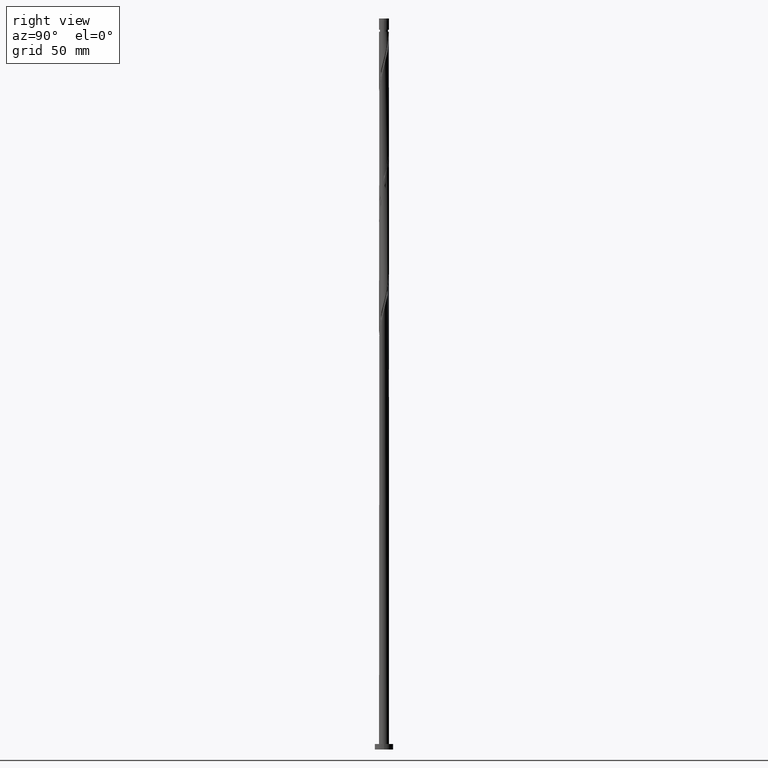
[diagram: clean part render]
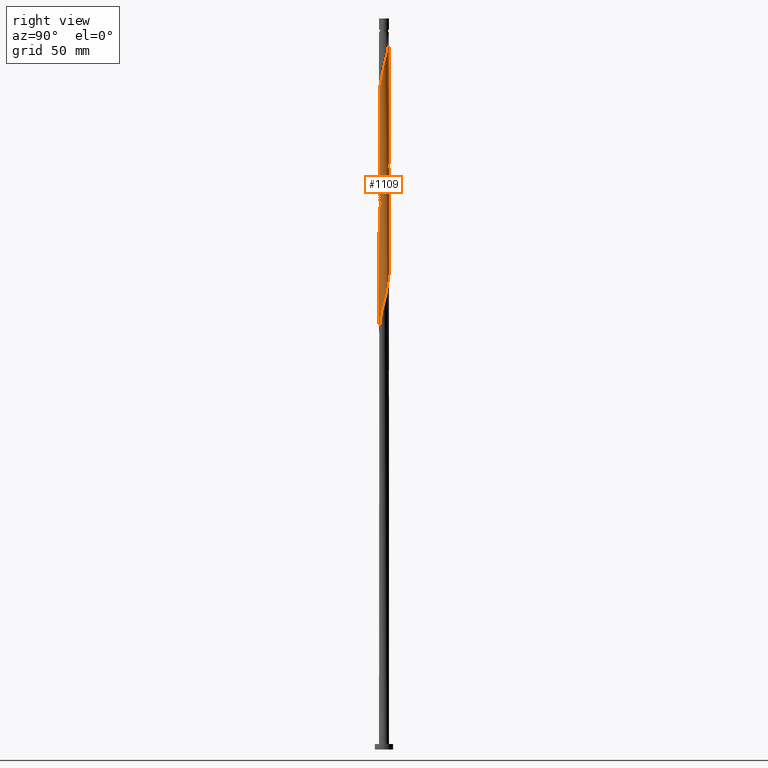
[diagram: same view with one face highlighted and labeled with its STEP entity id]
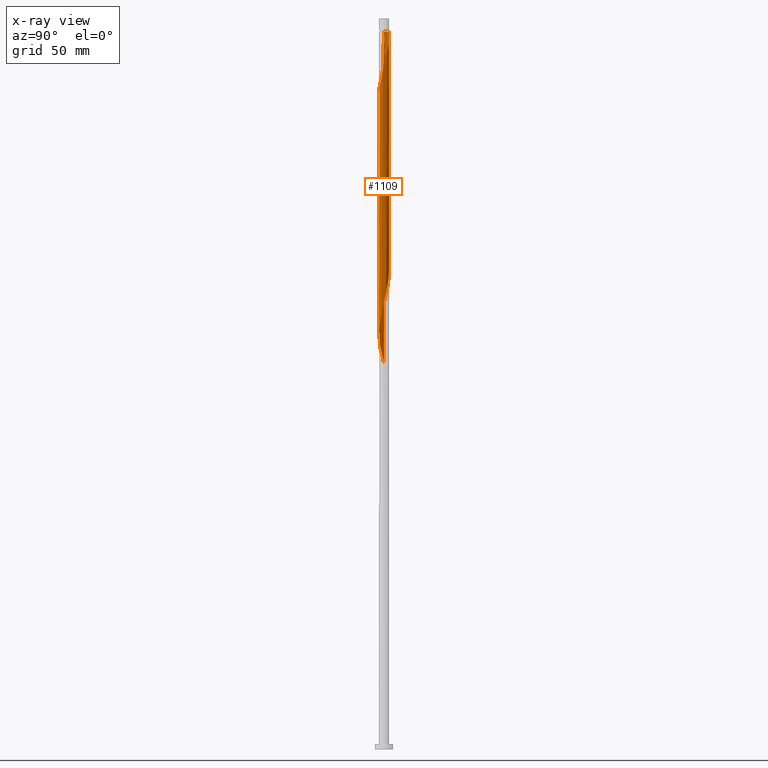
[diagram: x-ray of the same camera — body ghosted, the highlighted face saturated]
A machine part, right view. The second image highlights one B-rep face of the part: STEP entity #1109.
The next image is the same camera in x-ray: the body ghosted, the highlighted face saturated — about 0% of this face is hidden behind the body in this view.
In plain terms, the highlighted cylindrical surface (bore or boss wall) has radius 2.75 mm, axis along (-0, -0, -1).
Its self-contained STEP definition (entity closure, byte-faithful):
#40 = CARTESIAN_POINT ( 'NONE',  ( -2.536223244062801196, 1.101641429673628103, 340.5563878787840508 ) ) ;
#52 = CARTESIAN_POINT ( 'NONE',  ( 0.000000000000000000, 0.000000000000000000, 392.7786101010062794 ) ) ;
#54 = CARTESIAN_POINT ( 'NONE',  ( 2.536223244062806081, 1.101641429673626549, 378.3341656565618791 ) ) ;
#61 = VERTEX_POINT ( 'NONE', #287 ) ;
#67 = VECTOR ( 'NONE', #1145, 1000.000000000000000 ) ;
#77 = CARTESIAN_POINT ( 'NONE',  ( 1.831459344255979227, 2.071665719568494879, 320.5563878787841077 ) ) ;
#81 = CARTESIAN_POINT ( 'NONE',  ( 2.737438987291752834, -0.2625410269940723906, 310.5563878787841077 ) ) ;
#99 = CARTESIAN_POINT ( 'NONE',  ( 0.8783854691676968862, -2.621923177908314972, 298.3341656565619360 ) ) ;
#108 = CARTESIAN_POINT ( 'NONE',  ( 2.060316917994737818, -1.821426418339391340, 237.2230545454507649 ) ) ;
#109 = VERTEX_POINT ( 'NONE', #1718 ) ;
#114 = LINE ( 'NONE', #685, #457 ) ;
#116 = CARTESIAN_POINT ( 'NONE',  ( 2.536223244062801196, -1.101641429673628769, 240.5563878787841361 ) ) ;
#129 = CARTESIAN_POINT ( 'NONE',  ( 2.709844813423676335, -0.5502574583398192054, 242.7786101010063362 ) ) ;
#135 = CARTESIAN_POINT ( 'NONE',  ( -0.3140621580726320472, -2.747254473863784074, 356.1119434343395938 ) ) ;
#140 = CARTESIAN_POINT ( 'NONE',  ( -1.636598203750744496, 2.209987855052564232, 268.3341656565618223 ) ) ;
#144 = CARTESIAN_POINT ( 'NONE',  ( 2.699376291652122450, -0.5995079810680130628, 371.6674989898952504 ) ) ;
#162 = CARTESIAN_POINT ( 'NONE',  ( 0.8783854691677005500, 2.621923177908317193, 387.2230545454508501 ) ) ;
#172 =( BOUNDED_CURVE ( )  B_SPLINE_CURVE ( 2, ( #1046, #568, #272, #1616, #901, #1034, #715, #743, #1469, #1605, #1775, #863, #1289, #1431, #1448, #135, #871, #1311, #1868, #284, #1151, #1586, #724, #1298, #734, #261, #1876, #1024, #1736, #144, #1883, #590, #1091, #633, #499, #54, #658, #1080, #1061, #1206, #1667, #1237, #1379, #162, #762, #1054, #1814, #348, #795 ),
 .UNSPECIFIED., .F., .T. ) 
 B_SPLINE_CURVE_WITH_KNOTS ( ( 3, 2, 2, 2, 2, 2, 2, 2, 2, 2, 2, 2, 2, 2, 2, 2, 2, 2, 2, 2, 2, 2, 2, 2, 3 ),
 ( 0.5545286012773116280, 0.5583333333333333481, 0.5666666666666666519, 0.5749999999999999556, 0.5833333333333332593, 0.5916666666666666741, 0.5999999999999999778, 0.6083333333333333925, 0.6166666666666666963, 0.6250000000000000000, 0.6333333333333333037, 0.6416666666666666075, 0.6500000000000001332, 0.6583333333333334370, 0.6666666666666667407, 0.6750000000000001554, 0.6833333333333333481, 0.6916666666666667629, 0.7000000000000000666, 0.7083333333333333703, 0.7166666666666667851, 0.7250000000000000888, 0.7333333333333335036, 0.7416666666666668073, 0.7500000000000001110 ),
 .UNSPECIFIED. ) 
 CURVE ( )  GEOMETRIC_REPRESENTATION_ITEM ( )  RATIONAL_B_SPLINE_CURVE ( ( 0.9066196499552549026, 0.9068171577856677379, 0.9090909090909665702, 0.9041108139712148439, 0.9090909090909665702, 0.9041108139712148439, 0.9090909090909665702, 0.9041108139712148439, 0.9090909090909665702, 0.9041108139712148439, 0.9090909090909665702, 0.9041108139712148439, 0.9090909090909665702, 0.9041108139712148439, 0.9090909090909665702, 0.9041108139712148439, 0.9090909090909665702, 0.9041108139712148439, 0.9090909090909665702, 0.9041108139712148439, 0.9090909090909665702, 0.9041108139712148439, 0.9090909090909665702, 0.9041108139712148439, 0.9090909090909665702, 0.9041108139712148439, 0.9090909090909665702, 0.9041108139712148439, 0.9090909090909665702, 0.9041108139712148439, 0.9090909090909665702, 0.9041108139712148439, 0.9090909090909665702, 0.9041108139712148439, 0.9090909090909665702, 0.9041108139712148439, 0.9090909090909665702, 0.9041108139712148439, 0.9090909090909665702, 0.9041108139712148439, 0.9090909090909665702, 0.9041108139712148439, 0.9090909090909665702, 0.9041108139712148439, 0.9090909090909665702, 0.9041108139712148439, 0.9090909090909665702, 0.9041108139712147329, 0.9090909090909666812 ) ) 
 REPRESENTATION_ITEM ( '' )  );
#177 = CARTESIAN_POINT ( 'NONE',  ( -1.831459344255979005, -2.071665719568495767, 220.5563878787841645 ) ) ;
#188 = CARTESIAN_POINT ( 'NONE',  ( -2.709844813423676335, 0.5502574583398186503, 342.7786101010063931 ) ) ;
#204 = CARTESIAN_POINT ( 'NONE',  ( 0.02503749085249112882, -2.749886020192801706, 228.3341656565618791 ) ) ;
#230 = CARTESIAN_POINT ( 'NONE',  ( -0.02503749085249187822, 2.749886020192801706, 328.3341656565619928 ) ) ;
#240 = CARTESIAN_POINT ( 'NONE',  ( -0.8783854691676976634, 2.621923177908314528, 265.0008323232285647 ) ) ;
#249 = CARTESIAN_POINT ( 'NONE',  ( -2.393989896424900454, 1.353259906971122639, 272.7786101010063362 ) ) ;
#253 = CARTESIAN_POINT ( 'NONE',  ( 2.750000000000000444, 0.1566777779776840629, 312.1763113205789750 ) ) ;
#257 = CARTESIAN_POINT ( 'NONE',  ( -0.02503749085249187822, 2.749886020192801706, 261.6674989898951935 ) ) ;
#259 = ORIENTED_EDGE ( 'NONE', *, *, #363, .F. ) ;
#261 = CARTESIAN_POINT ( 'NONE',  ( 2.222161085990171259, -1.645613044190155527, 367.2230545454507364 ) ) ;
#265 = CARTESIAN_POINT ( 'NONE',  ( 1.596086692558399633, 2.239421190807567630, 255.0008323232285647 ) ) ;
#272 = CARTESIAN_POINT ( 'NONE',  ( -2.737438987291756831, -0.2625410269940704477, 341.6674989898952504 ) ) ;
#276 = CARTESIAN_POINT ( 'NONE',  ( -2.060316917994738262, 1.821426418339390230, 270.5563878787841077 ) ) ;
#284 = CARTESIAN_POINT ( 'NONE',  ( 0.8304990044496428636, -2.637482433478177235, 360.5563878787842214 ) ) ;
#287 = CARTESIAN_POINT ( 'NONE',  ( -2.750000000000003553, 9.865954177638731195E-16, 340.6531668574847913 ) ) ;
#324 = CARTESIAN_POINT ( 'NONE',  ( -2.607560008403383200, -0.8735735816606078341, 215.0008323232285932 ) ) ;
#348 = CARTESIAN_POINT ( 'NONE',  ( -0.2639871763676486238, 2.752517566521829995, 391.6674989898952504 ) ) ;
#354 = VERTEX_POINT ( 'NONE', #438 ) ;
#363 = EDGE_CURVE ( 'NONE', #61, #1646, #172, .T. ) ;
#376 = VERTEX_POINT ( 'NONE', #1215 ) ;
#381 = CARTESIAN_POINT ( 'NONE',  ( 2.251756548786999268, -1.604878384268620062, 305.0008323232285079 ) ) ;
#408 = CARTESIAN_POINT ( 'NONE',  ( -2.536223244062801196, 1.101641429673628103, 273.8897212121175357 ) ) ;
#419 = CARTESIAN_POINT ( 'NONE',  ( -1.404319120299012180, 2.382001257694966068, 267.2230545454507933 ) ) ;
#427 = ORIENTED_EDGE ( 'NONE', *, *, #1794, .F. ) ;
#431 = CARTESIAN_POINT ( 'NONE',  ( -0.5962238136201641892, 2.684588825886046859, 263.8897212121174221 ) ) ;
#438 = CARTESIAN_POINT ( 'NONE',  ( -2.749999999999964473, 0.000000000000000000, 392.7786101010062794 ) ) ;
#440 = CARTESIAN_POINT ( 'NONE',  ( -2.732204726405974338, -0.3123416927098429663, 279.4452767676729650 ) ) ;
#442 = DIRECTION ( 'NONE',  ( -0.000000000000000000, -0.000000000000000000, -1.000000000000000000 ) ) ;
#457 = VECTOR ( 'NONE', #864, 1000.000000000000000 ) ;
#477 = DIRECTION ( 'NONE',  ( -0.000000000000000000, -0.000000000000000000, -1.000000000000000000 ) ) ;
#480 = CARTESIAN_POINT ( 'NONE',  ( 0.02503749085249112882, -2.749886020192801706, 295.0008323232285647 ) ) ;
#499 = CARTESIAN_POINT ( 'NONE',  ( 2.623034028743242985, 0.8259494440067226551, 377.2230545454509070 ) ) ;
#508 = ORIENTED_EDGE ( 'NONE', *, *, #515, .T. ) ;
#513 = CARTESIAN_POINT ( 'NONE',  ( -1.095606522655231396, -2.522329547762407032, 223.8897212121174221 ) ) ;
#515 = EDGE_CURVE ( 'NONE', #61, #1103, #1657, .T. ) ;
#519 = CARTESIAN_POINT ( 'NONE',  ( -1.360714040860818486, -2.407176662046642601, 222.7786101010063362 ) ) ;
#522 = ORIENTED_EDGE ( 'NONE', *, *, #1706, .T. ) ;
#539 = CARTESIAN_POINT ( 'NONE',  ( -0.3140621580726310480, 2.747254473863780522, 329.4452767676729650 ) ) ;
#541 = DIRECTION ( 'NONE',  ( -1.000000000000000000, 0.000000000000000000, 0.000000000000000000 ) ) ;
#555 = CARTESIAN_POINT ( 'NONE',  ( 0.5472430904086456049, 2.694999999999999396, 326.1119434343395938 ) ) ;
#557 = CARTESIAN_POINT ( 'NONE',  ( 2.222161085990171703, 1.645613044190150642, 251.6674989898953356 ) ) ;
#564 = CARTESIAN_POINT ( 'NONE',  ( 2.607560008403384533, 0.8735735816606066129, 248.3341656565618507 ) ) ;
#568 = CARTESIAN_POINT ( 'NONE',  ( -2.750000000000003109, -0.1315709980385686151, 341.1617153830489997 ) ) ;
#573 = CARTESIAN_POINT ( 'NONE',  ( 2.026810215123074688, 1.858639381879324093, 252.7786101010062794 ) ) ;
#586 = CARTESIAN_POINT ( 'NONE',  ( 0.5472430904086456049, 2.694999999999999396, 259.4452767676730218 ) ) ;
#590 = CARTESIAN_POINT ( 'NONE',  ( 2.765033161159833774, -0.02517540435167804971, 373.8897212121174789 ) ) ;
#595 = CARTESIAN_POINT ( 'NONE',  ( 0.2639871763676471250, 2.752517566521825110, 260.5563878787841077 ) ) ;
#598 = CARTESIAN_POINT ( 'NONE',  ( -2.750000000000000000, -1.614428865431802238E-15, 211.5707200111945383 ) ) ;
#633 = CARTESIAN_POINT ( 'NONE',  ( 2.709844813423679444, 0.5502574583398184283, 376.1119434343397074 ) ) ;
#645 = CARTESIAN_POINT ( 'NONE',  ( -2.393989896424900454, 1.353259906971122639, 339.4452767676730218 ) ) ;
#658 = CARTESIAN_POINT ( 'NONE',  ( 2.393989896424904007, 1.353259906971123749, 379.4452767676730787 ) ) ;
#662 = CARTESIAN_POINT ( 'NONE',  ( -2.515743725154647059, -1.147639182253207046, 216.1119434343396790 ) ) ;
#685 = CARTESIAN_POINT ( 'NONE',  ( 2.750000000000000000, 3.367778697655221012E-16, 400.0000000000000000 ) ) ;
#693 = CARTESIAN_POINT ( 'NONE',  ( -2.251756548787000156, 1.604878384268618063, 338.3341656565620497 ) ) ;
#696 = CARTESIAN_POINT ( 'NONE',  ( 2.709844813423676335, -0.5502574583398192054, 309.4452767676730218 ) ) ;
#701 = CARTESIAN_POINT ( 'NONE',  ( 2.368952405572409159, 1.396626113221678400, 317.2230545454507933 ) ) ;
#705 = CARTESIAN_POINT ( 'NONE',  ( 0.5962238136201629679, -2.684588825886047303, 297.2230545454507933 ) ) ;
#708 = CARTESIAN_POINT ( 'NONE',  ( 2.750000000000000000, 4.335040471992802617E-16, 311.5707200111944530 ) ) ;
#711 = CARTESIAN_POINT ( 'NONE',  ( 1.636598203750743830, -2.209987855052565120, 235.0008323232285363 ) ) ;
#715 = CARTESIAN_POINT ( 'NONE',  ( -2.393989896424904007, -1.353259906971123971, 346.1119434343396506 ) ) ;
#716 = CARTESIAN_POINT ( 'NONE',  ( 2.732204726405974338, 0.3123416927098426887, 312.7786101010063362 ) ) ;
#719 = CARTESIAN_POINT ( 'NONE',  ( 1.868877287202476811, -2.037974452410163728, 302.7786101010064499 ) ) ;
#724 = CARTESIAN_POINT ( 'NONE',  ( 1.596086692558398745, -2.239421190807573403, 363.8897212121174789 ) ) ;
#729 = CARTESIAN_POINT ( 'NONE',  ( 2.765033161159829778, 0.02517540435167425067, 245.0008323232285079 ) ) ;
#734 = CARTESIAN_POINT ( 'NONE',  ( 2.026810215123076464, -1.858639381879326979, 366.1119434343395938 ) ) ;
#739 = CARTESIAN_POINT ( 'NONE',  ( -0.2639871763676483463, -2.752517566521825110, 293.8897212121174221 ) ) ;
#743 = CARTESIAN_POINT ( 'NONE',  ( -2.251756548787004153, -1.604878384268619618, 347.2230545454507933 ) ) ;
#762 = CARTESIAN_POINT ( 'NONE',  ( 0.5962238136201674088, 2.684588825886050856, 388.3341656565619360 ) ) ;
#777 = CARTESIAN_POINT ( 'NONE',  ( -2.699376291652119786, -0.5995079810680096211, 213.8897212121175073 ) ) ;
#788 = CARTESIAN_POINT ( 'NONE',  ( -2.623034028743237212, 0.8259494440067235432, 341.6674989898951935 ) ) ;
#795 = CARTESIAN_POINT ( 'NONE',  ( -0.5472430904087440817, 2.695000000000762785, 392.7786101010064499 ) ) ;
#801 = ORIENTED_EDGE ( 'NONE', *, *, #1663, .F. ) ;
#810 = CARTESIAN_POINT ( 'NONE',  ( -2.026810215123074244, -1.858639381879324093, 219.4452767676729650 ) ) ;
#828 = CARTESIAN_POINT ( 'NONE',  ( 1.596086692558399633, 2.239421190807567630, 321.6674989898950798 ) ) ;
#837 = CARTESIAN_POINT ( 'NONE',  ( 2.026810215123074688, 1.858639381879324093, 319.4452767676730218 ) ) ;
#846 = CARTESIAN_POINT ( 'NONE',  ( 0.8304990044496451951, 2.637482433478172350, 258.3341656565619360 ) ) ;
#859 = CARTESIAN_POINT ( 'NONE',  ( 2.732204726405974338, 0.3123416927098426887, 246.1119434343396222 ) ) ;
#863 = CARTESIAN_POINT ( 'NONE',  ( -1.404319120299014845, -2.382001257694969620, 351.6674989898952504 ) ) ;
#864 = DIRECTION ( 'NONE',  ( -0.000000000000000000, -0.000000000000000000, -1.000000000000000000 ) ) ;
#867 = CARTESIAN_POINT ( 'NONE',  ( -1.831459344255979005, -2.071665719568495767, 287.2230545454508501 ) ) ;
#868 = FACE_OUTER_BOUND ( 'NONE', #1702, .T. ) ;
#871 = CARTESIAN_POINT ( 'NONE',  ( -0.02503749085249342560, -2.749886020192806146, 357.2230545454508501 ) ) ;
#875 = CARTESIAN_POINT ( 'NONE',  ( 1.831459344255979227, 2.071665719568494879, 253.8897212121174505 ) ) ;
#886 = CARTESIAN_POINT ( 'NONE',  ( -1.360714040860818486, -2.407176662046642601, 289.4452767676730218 ) ) ;
#889 = CYLINDRICAL_SURFACE ( 'NONE', #1849, 2.750000000000000000 ) ;
#901 = CARTESIAN_POINT ( 'NONE',  ( -2.623034028743242985, -0.8259494440067236543, 343.8897212121176494 ) ) ;
#926 = CARTESIAN_POINT ( 'NONE',  ( -0.8304990044496438628, -2.637482433478172794, 225.0008323232285363 ) ) ;
#937 = CARTESIAN_POINT ( 'NONE',  ( -2.749999999999999112, 1.793809850479779909E-16, 344.9040533445278243 ) ) ;
#950 = CARTESIAN_POINT ( 'NONE',  ( -2.750000000000000000, 0.000000000000000000, 400.0000000000000000 ) ) ;
#953 = CARTESIAN_POINT ( 'NONE',  ( 0.3140621580726306594, -2.747254473863780522, 229.4452767676730787 ) ) ;
#963 = CARTESIAN_POINT ( 'NONE',  ( -2.222161085990171259, -1.645613044190152419, 218.3341656565618507 ) ) ;
#972 = CARTESIAN_POINT ( 'NONE',  ( 0.2639871763676471250, 2.752517566521825110, 327.2230545454507933 ) ) ;
#975 = CARTESIAN_POINT ( 'NONE',  ( 2.060316917994737818, -1.821426418339391340, 303.8897212121173652 ) ) ;
#981 = CARTESIAN_POINT ( 'NONE',  ( -1.141352294733354977, 2.501962217801640076, 332.7786101010063362 ) ) ;
#991 = ORIENTED_EDGE ( 'NONE', *, *, #1382, .F. ) ;
#996 = CARTESIAN_POINT ( 'NONE',  ( -0.8783854691676976634, 2.621923177908314528, 331.6674989898952504 ) ) ;
#1006 = CARTESIAN_POINT ( 'NONE',  ( 2.699376291652120674, 0.5995079810680088439, 247.2230545454507933 ) ) ;
#1013 = CARTESIAN_POINT ( 'NONE',  ( 1.636598203750743830, -2.209987855052565120, 301.6674989898951935 ) ) ;
#1020 = CARTESIAN_POINT ( 'NONE',  ( -1.596086692558398301, -2.239421190807568518, 288.3341656565619360 ) ) ;
#1024 = CARTESIAN_POINT ( 'NONE',  ( 2.515743725154651056, -1.147639182253209045, 369.4452767676729650 ) ) ;
#1029 = CARTESIAN_POINT ( 'NONE',  ( -2.737438987291752834, 0.2625410269940714469, 277.2230545454507364 ) ) ;
#1034 = CARTESIAN_POINT ( 'NONE',  ( -2.536223244062805193, -1.101641429673628103, 345.0008323232285647 ) ) ;
#1046 = CARTESIAN_POINT ( 'NONE',  ( -2.750000000000003553, 9.865954177638731195E-16, 340.6531668574847913 ) ) ;
#1054 = CARTESIAN_POINT ( 'NONE',  ( 0.3140621580726324913, 2.747254473863784074, 389.4452767676729650 ) ) ;
#1061 = CARTESIAN_POINT ( 'NONE',  ( 2.060316917994743147, 1.821426418339391118, 381.6674989898953072 ) ) ;
#1063 = CARTESIAN_POINT ( 'NONE',  ( -2.222161085990171259, -1.645613044190152419, 285.0008323232285647 ) ) ;
#1080 = CARTESIAN_POINT ( 'NONE',  ( 2.251756548787004597, 1.604878384268618730, 380.5563878787841645 ) ) ;
#1091 = CARTESIAN_POINT ( 'NONE',  ( 2.737438987291756831, 0.2625410269940689489, 375.0008323232286216 ) ) ;
#1094 = CARTESIAN_POINT ( 'NONE',  ( -2.368952405572409159, -1.396626113221678844, 217.2230545454507364 ) ) ;
#1103 = VERTEX_POINT ( 'NONE', #598 ) ;
#1105 = CARTESIAN_POINT ( 'NONE',  ( 2.393989896424900454, -1.353259906971123305, 306.1119434343395369 ) ) ;
#1109 = ADVANCED_FACE ( 'NONE', ( #868 ), #889, .T. ) ;
#1121 = CARTESIAN_POINT ( 'NONE',  ( 1.095606522655231840, 2.522329547762407032, 323.8897212121174789 ) ) ;
#1123 =( BOUNDED_CURVE ( )  B_SPLINE_CURVE ( 2, ( #1242, #1823, #81, #696, #1699, #1134, #1105, #381, #975, #719, #1013, #1760, #1420, #99, #705, #1589, #480, #739, #1748, #1579, #1443, #886, #1020, #867, #1739, #1063, #1276, #1291, #1886, #1866, #440, #1878, #1029, #1452, #1724, #408, #249, #1176, #276, #1148, #140, #419, #1435, #240, #431, #1315, #257, #595, #586, #846, #1597, #1861, #265, #875, #573, #557, #1167, #1142, #564, #1006, #859, #729, #1573, #129, #1427, #116, #1156, #1306, #108, #1285, #711, #1732, #1870, #1644, #1818, #953, #204, #1798, #1228, #926, #513, #519, #1810, #177, #810, #963, #1094, #662, #324, #777, #1496, #1805, #1670 ),
 .UNSPECIFIED., .F., .T. ) 
 B_SPLINE_CURVE_WITH_KNOTS ( ( 3, 2, 2, 2, 2, 2, 2, 2, 2, 2, 2, 2, 2, 2, 2, 2, 2, 2, 2, 2, 2, 2, 2, 2, 2, 2, 2, 2, 2, 2, 2, 2, 2, 2, 2, 2, 2, 2, 2, 2, 2, 2, 2, 2, 2, 2, 3 ),
 ( 0.5545286012773115170, 0.5583333333333333481, 0.5666666666666666519, 0.5749999999999999556, 0.5833333333333333703, 0.5916666666666666741, 0.5999999999999999778, 0.6083333333333332815, 0.6166666666666666963, 0.6250000000000000000, 0.6333333333333333037, 0.6416666666666667185, 0.6500000000000000222, 0.6583333333333333259, 0.6666666666666666297, 0.6750000000000000444, 0.6833333333333333481, 0.6916666666666666519, 0.6999999999999999556, 0.7083333333333333703, 0.7166666666666666741, 0.7249999999999999778, 0.7333333333333332815, 0.7416666666666666963, 0.7500000000000000000, 0.7583333333333333037, 0.7666666666666667185, 0.7750000000000000222, 0.7833333333333333259, 0.7916666666666666297, 0.8000000000000000444, 0.8083333333333333481, 0.8166666666666666519, 0.8249999999999999556, 0.8333333333333333703, 0.8416666666666666741, 0.8499999999999999778, 0.8583333333333332815, 0.8666666666666666963, 0.8750000000000000000, 0.8833333333333333037, 0.8916666666666667185, 0.9000000000000000222, 0.9083333333333333259, 0.9166666666666666297, 0.9250000000000000444, 0.9295286012773112949 ),
 .UNSPECIFIED. ) 
 CURVE ( )  GEOMETRIC_REPRESENTATION_ITEM ( )  RATIONAL_B_SPLINE_CURVE ( ( 0.9066196499552495736, 0.9068171577856622978, 0.9090909090909612411, 0.9041108139712092928, 0.9090909090909612411, 0.9041108139712092928, 0.9090909090909612411, 0.9041108139712092928, 0.9090909090909612411, 0.9041108139712092928, 0.9090909090909612411, 0.9041108139712092928, 0.9090909090909612411, 0.9041108139712092928, 0.9090909090909612411, 0.9041108139712092928, 0.9090909090909612411, 0.9041108139712092928, 0.9090909090909612411, 0.9041108139712092928, 0.9090909090909612411, 0.9041108139712092928, 0.9090909090909612411, 0.9041108139712092928, 0.9090909090909612411, 0.9041108139712092928, 0.9090909090909612411, 0.9041108139712092928, 0.9090909090909612411, 0.9041108139712092928, 0.9090909090909612411, 0.9041108139712092928, 0.9090909090909612411, 0.9041108139712092928, 0.9090909090909612411, 0.9041108139712092928, 0.9090909090909612411, 0.9041108139712092928, 0.9090909090909612411, 0.9041108139712092928, 0.9090909090909612411, 0.9041108139712092928, 0.9090909090909612411, 0.9041108139712092928, 0.9090909090909612411, 0.9041108139712092928, 0.9090909090909612411, 0.9041108139712092928, 0.9090909090909612411, 0.9041108139712092928, 0.9090909090909612411, 0.9041108139712092928, 0.9090909090909612411, 0.9041108139712092928, 0.9090909090909612411, 0.9041108139712092928, 0.9090909090909612411, 0.9041108139712092928, 0.9090909090909612411, 0.9041108139712092928, 0.9090909090909612411, 0.9041108139712092928, 0.9090909090909612411, 0.9041108139712092928, 0.9090909090909612411, 0.9041108139712092928, 0.9090909090909612411, 0.9041108139712092928, 0.9090909090909612411, 0.9041108139712092928, 0.9090909090909612411, 0.9041108139712092928, 0.9090909090909612411, 0.9041108139712092928, 0.9090909090909612411, 0.9041108139712092928, 0.9090909090909612411, 0.9041108139712092928, 0.9090909090909612411, 0.9041108139712092928, 0.9090909090909612411, 0.9041108139712092928, 0.9090909090909612411, 0.9041108139712092928, 0.9090909090909612411, 0.9041108139712092928, 0.9090909090909612411, 0.9041108139712092928, 0.9090909090909612411, 0.9041108139712092928, 0.9090909090909612411, 0.9063845652765083472, 0.9066196499552494625 ) ) 
 REPRESENTATION_ITEM ( '' )  );
#1134 = CARTESIAN_POINT ( 'NONE',  ( 2.536223244062801196, -1.101641429673628769, 307.2230545454509638 ) ) ;
#1140 = CARTESIAN_POINT ( 'NONE',  ( 2.699376291652120674, 0.5995079810680088439, 313.8897212121174789 ) ) ;
#1141 = ORIENTED_EDGE ( 'NONE', *, *, #1282, .T. ) ;
#1142 = CARTESIAN_POINT ( 'NONE',  ( 2.515743725154647947, 1.147639182253206824, 249.4452767676730502 ) ) ;
#1145 = DIRECTION ( 'NONE',  ( -0.000000000000000000, -0.000000000000000000, -1.000000000000000000 ) ) ;
#1148 = CARTESIAN_POINT ( 'NONE',  ( -1.868877287202477033, 2.037974452410163728, 269.4452767676730787 ) ) ;
#1151 = CARTESIAN_POINT ( 'NONE',  ( 1.095606522655230508, -2.522329547762411917, 361.6674989898953072 ) ) ;
#1156 = CARTESIAN_POINT ( 'NONE',  ( 2.393989896424900454, -1.353259906971123305, 239.4452767676729650 ) ) ;
#1167 = CARTESIAN_POINT ( 'NONE',  ( 2.368952405572409159, 1.396626113221678400, 250.5563878787840508 ) ) ;
#1175 = ORIENTED_EDGE ( 'NONE', *, *, #1706, .F. ) ;
#1176 = CARTESIAN_POINT ( 'NONE',  ( -2.251756548787000156, 1.604878384268618063, 271.6674989898952504 ) ) ;
#1179 = CARTESIAN_POINT ( 'NONE',  ( 0.000000000000000000, 0.000000000000000000, 400.0000000000000000 ) ) ;
#1206 = CARTESIAN_POINT ( 'NONE',  ( 1.868877287202480364, 2.037974452410165060, 382.7786101010062794 ) ) ;
#1215 = CARTESIAN_POINT ( 'NONE',  ( -2.749999999999999112, 1.793809850479779909E-16, 344.9040533445278243 ) ) ;
#1223 = AXIS2_PLACEMENT_3D ( 'NONE', #52, #1252, #541 ) ;
#1228 = CARTESIAN_POINT ( 'NONE',  ( -0.5472430904086452719, -2.694999999999999396, 226.1119434343396790 ) ) ;
#1237 = CARTESIAN_POINT ( 'NONE',  ( 1.404319120299016177, 2.382001257694969620, 385.0008323232286216 ) ) ;
#1242 = CARTESIAN_POINT ( 'NONE',  ( 2.750000000000000000, 4.335040471992802617E-16, 311.5707200111944530 ) ) ;
#1252 = DIRECTION ( 'NONE',  ( -0.000000000000000000, -0.000000000000000000, -1.000000000000000000 ) ) ;
#1263 = CARTESIAN_POINT ( 'NONE',  ( 0.8304990044496451951, 2.637482433478172350, 325.0008323232285647 ) ) ;
#1276 = CARTESIAN_POINT ( 'NONE',  ( -2.368952405572409159, -1.396626113221678844, 283.8897212121174221 ) ) ;
#1282 = EDGE_CURVE ( 'NONE', #354, #1646, #1608, .T. ) ;
#1285 = CARTESIAN_POINT ( 'NONE',  ( 1.868877287202476811, -2.037974452410163728, 236.1119434343397074 ) ) ;
#1289 = CARTESIAN_POINT ( 'NONE',  ( -1.141352294733356976, -2.501962217801643629, 352.7786101010063362 ) ) ;
#1291 = CARTESIAN_POINT ( 'NONE',  ( -2.515743725154647059, -1.147639182253207046, 282.7786101010063362 ) ) ;
#1298 = CARTESIAN_POINT ( 'NONE',  ( 1.831459344255979671, -2.071665719568499320, 365.0008323232285647 ) ) ;
#1306 = CARTESIAN_POINT ( 'NONE',  ( 2.251756548786999268, -1.604878384268620062, 238.3341656565619360 ) ) ;
#1311 = CARTESIAN_POINT ( 'NONE',  ( 0.2639871763676464034, -2.752517566521829551, 358.3341656565618791 ) ) ;
#1315 = CARTESIAN_POINT ( 'NONE',  ( -0.3140621580726310480, 2.747254473863780522, 262.7786101010063362 ) ) ;
#1375 = CARTESIAN_POINT ( 'NONE',  ( -2.737438987291752834, 0.2625410269940714469, 343.8897212121174789 ) ) ;
#1379 = CARTESIAN_POINT ( 'NONE',  ( 1.141352294733356976, 2.501962217801644073, 386.1119434343397643 ) ) ;
#1382 = EDGE_CURVE ( 'NONE', #1513, #1103, #1123, .T. ) ;
#1415 = CARTESIAN_POINT ( 'NONE',  ( -1.868877287202477033, 2.037974452410163728, 336.1119434343397074 ) ) ;
#1420 = CARTESIAN_POINT ( 'NONE',  ( 1.141352294733354755, -2.501962217801640076, 299.4452767676729081 ) ) ;
#1427 = CARTESIAN_POINT ( 'NONE',  ( 2.623034028743237212, -0.8259494440067249865, 241.6674989898952219 ) ) ;
#1431 = CARTESIAN_POINT ( 'NONE',  ( -0.8783854691676998838, -2.621923177908317193, 353.8897212121175926 ) ) ;
#1435 = CARTESIAN_POINT ( 'NONE',  ( -1.141352294733354977, 2.501962217801640076, 266.1119434343395938 ) ) ;
#1443 = CARTESIAN_POINT ( 'NONE',  ( -1.095606522655231396, -2.522329547762407032, 290.5563878787839940 ) ) ;
#1448 = CARTESIAN_POINT ( 'NONE',  ( -0.5962238136201662986, -2.684588825886050856, 355.0008323232286216 ) ) ;
#1452 = CARTESIAN_POINT ( 'NONE',  ( -2.709844813423676335, 0.5502574583398186503, 276.1119434343396506 ) ) ;
#1469 = CARTESIAN_POINT ( 'NONE',  ( -2.060316917994741814, -1.821426418339391784, 348.3341656565619360 ) ) ;
#1496 = CARTESIAN_POINT ( 'NONE',  ( -2.732204726405974338, -0.3123416927098429663, 212.7786101010063362 ) ) ;
#1505 = CARTESIAN_POINT ( 'NONE',  ( -2.750000000000000444, 0.1315709980385687539, 344.3955048189638433 ) ) ;
#1513 = VERTEX_POINT ( 'NONE', #1522 ) ;
#1522 = CARTESIAN_POINT ( 'NONE',  ( 2.750000000000000000, 4.335040471992802617E-16, 311.5707200111944530 ) ) ;
#1542 = CARTESIAN_POINT ( 'NONE',  ( 2.607560008403384533, 0.8735735816606066129, 315.0008323232285079 ) ) ;
#1554 = CARTESIAN_POINT ( 'NONE',  ( -1.404319120299012180, 2.382001257694966068, 333.8897212121175357 ) ) ;
#1564 = LINE ( 'NONE', #1694, #67 ) ;
#1573 = CARTESIAN_POINT ( 'NONE',  ( 2.737438987291752834, -0.2625410269940723906, 243.8897212121174505 ) ) ;
#1577 = CARTESIAN_POINT ( 'NONE',  ( 2.515743725154647947, 1.147639182253206824, 316.1119434343397643 ) ) ;
#1579 = CARTESIAN_POINT ( 'NONE',  ( -0.8304990044496438628, -2.637482433478172794, 291.6674989898953072 ) ) ;
#1586 = CARTESIAN_POINT ( 'NONE',  ( 1.360714040860819596, -2.407176662046646598, 362.7786101010064499 ) ) ;
#1589 = CARTESIAN_POINT ( 'NONE',  ( 0.3140621580726306594, -2.747254473863780522, 296.1119434343395938 ) ) ;
#1597 = CARTESIAN_POINT ( 'NONE',  ( 1.095606522655231840, 2.522329547762407032, 257.2230545454507933 ) ) ;
#1605 = CARTESIAN_POINT ( 'NONE',  ( -1.868877287202480142, -2.037974452410165060, 349.4452767676731355 ) ) ;
#1608 = CIRCLE ( 'NONE', #1223, 2.749999999999964473 ) ;
#1616 = CARTESIAN_POINT ( 'NONE',  ( -2.709844813423679444, -0.5502574583398188723, 342.7786101010063362 ) ) ;
#1644 = CARTESIAN_POINT ( 'NONE',  ( 0.8783854691676968862, -2.621923177908314972, 231.6674989898952504 ) ) ;
#1646 = VERTEX_POINT ( 'NONE', #1654 ) ;
#1654 = CARTESIAN_POINT ( 'NONE',  ( -0.5472430904087440817, 2.695000000000762785, 392.7786101010064499 ) ) ;
#1657 = LINE ( 'NONE', #950, #1708 ) ;
#1663 = EDGE_CURVE ( 'NONE', #376, #1513, #1757, .T. ) ;
#1667 = CARTESIAN_POINT ( 'NONE',  ( 1.636598203750747604, 2.209987855052566008, 383.8897212121175357 ) ) ;
#1670 = CARTESIAN_POINT ( 'NONE',  ( -2.750000000000000000, -1.614428865431802435E-15, 211.5707200111945383 ) ) ;
#1694 = CARTESIAN_POINT ( 'NONE',  ( -2.750000000000000000, 0.000000000000000000, 400.0000000000000000 ) ) ;
#1699 = CARTESIAN_POINT ( 'NONE',  ( 2.623034028743237212, -0.8259494440067249865, 308.3341656565619360 ) ) ;
#1702 = EDGE_LOOP ( 'NONE', ( #427, #1141, #259, #508, #991, #1175, #522, #801 ) ) ;
#1705 = CARTESIAN_POINT ( 'NONE',  ( -0.5962238136201641892, 2.684588825886046859, 330.5563878787839940 ) ) ;
#1706 = EDGE_CURVE ( 'NONE', #109, #1513, #114, .T. ) ;
#1708 = VECTOR ( 'NONE', #477, 1000.000000000000000 ) ;
#1718 = CARTESIAN_POINT ( 'NONE',  ( 2.750000000000000000, 3.367778697655221012E-16, 392.7786101010064499 ) ) ;
#1719 = CARTESIAN_POINT ( 'NONE',  ( 2.222161085990171703, 1.645613044190150642, 318.3341656565619360 ) ) ;
#1724 = CARTESIAN_POINT ( 'NONE',  ( -2.623034028743237212, 0.8259494440067235432, 275.0008323232286216 ) ) ;
#1728 = CARTESIAN_POINT ( 'NONE',  ( 1.360714040860818930, 2.407176662046642601, 322.7786101010063931 ) ) ;
#1732 = CARTESIAN_POINT ( 'NONE',  ( 1.404319120299011292, -2.382001257694966068, 233.8897212121175073 ) ) ;
#1736 = CARTESIAN_POINT ( 'NONE',  ( 2.607560008403387197, -0.8735735816606113868, 370.5563878787842782 ) ) ;
#1739 = CARTESIAN_POINT ( 'NONE',  ( -2.026810215123074244, -1.858639381879324093, 286.1119434343396506 ) ) ;
#1748 = CARTESIAN_POINT ( 'NONE',  ( -0.5472430904086452719, -2.694999999999999396, 292.7786101010063931 ) ) ;
#1750 = DIRECTION ( 'NONE',  ( -1.000000000000000000, 0.000000000000000000, 0.000000000000000000 ) ) ;
#1757 =( BOUNDED_CURVE ( )  B_SPLINE_CURVE ( 2, ( #937, #1505, #1375, #188, #788, #40, #645, #693, #1855, #1415, #1837, #1554, #981, #996, #1705, #539, #230, #972, #555, #1263, #1121, #1728, #828, #77, #837, #1719, #701, #1577, #1542, #1140, #716, #253, #708 ),
 .UNSPECIFIED., .F., .T. ) 
 B_SPLINE_CURVE_WITH_KNOTS ( ( 3, 2, 2, 2, 2, 2, 2, 2, 2, 2, 2, 2, 2, 2, 2, 2, 3 ),
 ( 0.4295286012773115725, 0.4333333333333333481, 0.4416666666666666519, 0.4500000000000000111, 0.4583333333333333148, 0.4666666666666666741, 0.4749999999999999778, 0.4833333333333333370, 0.4916666666666666408, 0.5000000000000000000, 0.5083333333333333037, 0.5166666666666667185, 0.5250000000000000222, 0.5333333333333333259, 0.5416666666666666297, 0.5500000000000000444, 0.5545286012773115170 ),
 .UNSPECIFIED. ) 
 CURVE ( )  GEOMETRIC_REPRESENTATION_ITEM ( )  RATIONAL_B_SPLINE_CURVE ( ( 0.9066196499552494625, 0.9068171577856622978, 0.9090909090909612411, 0.9041108139712092928, 0.9090909090909612411, 0.9041108139712092928, 0.9090909090909612411, 0.9041108139712092928, 0.9090909090909612411, 0.9041108139712092928, 0.9090909090909612411, 0.9041108139712092928, 0.9090909090909612411, 0.9041108139712092928, 0.9090909090909612411, 0.9041108139712092928, 0.9090909090909612411, 0.9041108139712092928, 0.9090909090909612411, 0.9041108139712092928, 0.9090909090909612411, 0.9041108139712092928, 0.9090909090909612411, 0.9041108139712092928, 0.9090909090909612411, 0.9041108139712092928, 0.9090909090909612411, 0.9041108139712092928, 0.9090909090909612411, 0.9041108139712092928, 0.9090909090909612411, 0.9063845652765083472, 0.9066196499552495736 ) ) 
 REPRESENTATION_ITEM ( '' )  );
#1760 = CARTESIAN_POINT ( 'NONE',  ( 1.404319120299011292, -2.382001257694966068, 300.5563878787841645 ) ) ;
#1775 = CARTESIAN_POINT ( 'NONE',  ( -1.636598203750747604, -2.209987855052566008, 350.5563878787841645 ) ) ;
#1794 = EDGE_CURVE ( 'NONE', #354, #376, #1564, .T. ) ;
#1798 = CARTESIAN_POINT ( 'NONE',  ( -0.2639871763676483463, -2.752517566521825110, 227.2230545454507933 ) ) ;
#1805 = CARTESIAN_POINT ( 'NONE',  ( -2.749999999999999556, -0.1566777779776928059, 212.1763113205791171 ) ) ;
#1810 = CARTESIAN_POINT ( 'NONE',  ( -1.596086692558398301, -2.239421190807568518, 221.6674989898952504 ) ) ;
#1814 = CARTESIAN_POINT ( 'NONE',  ( 0.02503749085249385928, 2.749886020192806146, 390.5563878787842782 ) ) ;
#1818 = CARTESIAN_POINT ( 'NONE',  ( 0.5962238136201629679, -2.684588825886047303, 230.5563878787841361 ) ) ;
#1823 = CARTESIAN_POINT ( 'NONE',  ( 2.750000000000000444, -0.1315709980385671996, 311.0621714856304152 ) ) ;
#1837 = CARTESIAN_POINT ( 'NONE',  ( -1.636598203750744496, 2.209987855052564232, 335.0008323232286216 ) ) ;
#1849 = AXIS2_PLACEMENT_3D ( 'NONE', #1179, #442, #1750 ) ;
#1855 = CARTESIAN_POINT ( 'NONE',  ( -2.060316917994738262, 1.821426418339390230, 337.2230545454507364 ) ) ;
#1861 = CARTESIAN_POINT ( 'NONE',  ( 1.360714040860818930, 2.407176662046642601, 256.1119434343397643 ) ) ;
#1866 = CARTESIAN_POINT ( 'NONE',  ( -2.699376291652119786, -0.5995079810680096211, 280.5563878787841645 ) ) ;
#1868 = CARTESIAN_POINT ( 'NONE',  ( 0.5472430904086451608, -2.695000000000002505, 359.4452767676730218 ) ) ;
#1870 = CARTESIAN_POINT ( 'NONE',  ( 1.141352294733354755, -2.501962217801640076, 232.7786101010063078 ) ) ;
#1876 = CARTESIAN_POINT ( 'NONE',  ( 2.368952405572412268, -1.396626113221682841, 368.3341656565619928 ) ) ;
#1878 = CARTESIAN_POINT ( 'NONE',  ( -2.765033161159829778, -0.02517540435167596458, 278.3341656565618223 ) ) ;
#1883 = CARTESIAN_POINT ( 'NONE',  ( 2.732204726405978779, -0.3123416927098444651, 372.7786101010063931 ) ) ;
#1886 = CARTESIAN_POINT ( 'NONE',  ( -2.607560008403383200, -0.8735735816606078341, 281.6674989898952504 ) ) ;